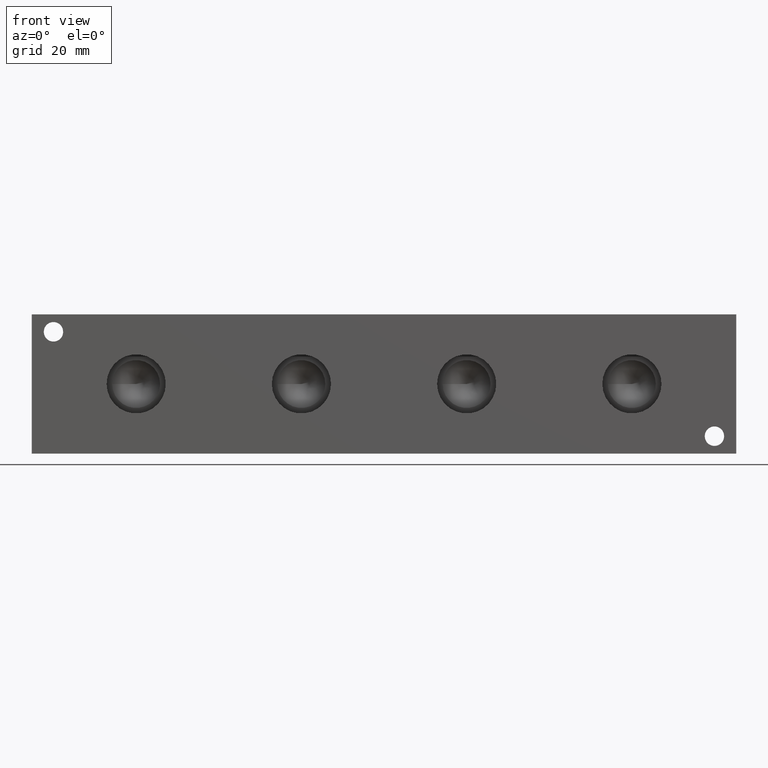
[diagram: clean part render]
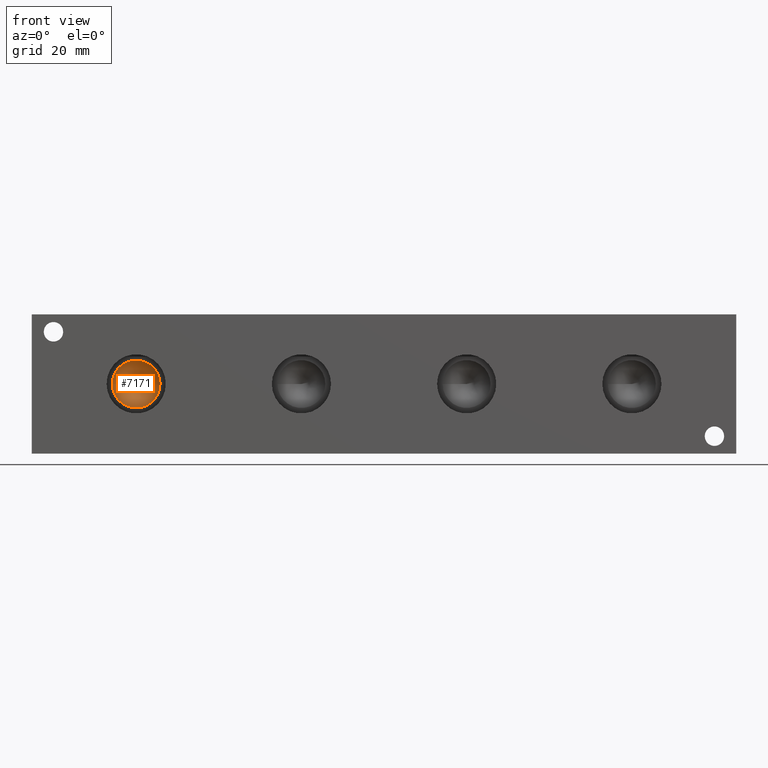
[diagram: same view with one face highlighted and labeled with its STEP entity id]
A machine part, front view. The second image highlights one B-rep face of the part: STEP entity #7171.
In plain terms, the highlighted conical surface has half-angle 60 deg.
Its self-contained STEP definition (entity closure, byte-faithful):
#15=CONICAL_SURFACE('',#7474,4.3688,1.0471975511966);
#87=CIRCLE('',#7475,8.7376);
#88=CIRCLE('',#7476,8.7376);
#748=FACE_OUTER_BOUND('',#1152,.T.);
#1152=EDGE_LOOP('',(#6195,#6196,#6197,#6198));
#1870=LINE('',#12121,#2563);
#2563=VECTOR('',#8726,4.3688);
#3404=VERTEX_POINT('',#12117);
#3405=VERTEX_POINT('',#12118);
#3406=VERTEX_POINT('',#12120);
#4355=EDGE_CURVE('',#3404,#3405,#87,.T.);
#4356=EDGE_CURVE('',#3405,#3406,#1870,.T.);
#4357=EDGE_CURVE('',#3405,#3404,#88,.T.);
#6195=ORIENTED_EDGE('',*,*,#4355,.T.);
#6196=ORIENTED_EDGE('',*,*,#4356,.T.);
#6197=ORIENTED_EDGE('',*,*,#4356,.F.);
#6198=ORIENTED_EDGE('',*,*,#4357,.T.);
#7171=ADVANCED_FACE('',(#748),#15,.F.);
#7474=AXIS2_PLACEMENT_3D('',#12116,#8722,#8723);
#7475=AXIS2_PLACEMENT_3D('',#12119,#8724,#8725);
#7476=AXIS2_PLACEMENT_3D('',#12122,#8727,#8728);
#8722=DIRECTION('center_axis',(0.,-1.,0.));
#8723=DIRECTION('ref_axis',(1.,0.,0.));
#8724=DIRECTION('center_axis',(0.,-1.,0.));
#8725=DIRECTION('ref_axis',(1.,0.,0.));
#8726=DIRECTION('',(0.866025403784439,0.5,1.06057523872491E-16));
#8727=DIRECTION('center_axis',(0.,-1.,0.));
#8728=DIRECTION('ref_axis',(1.,0.,0.));
#12116=CARTESIAN_POINT('Origin',(38.1,18.3937978560356,25.4));
#12117=CARTESIAN_POINT('',(46.8376,15.87147,25.4));
#12118=CARTESIAN_POINT('',(29.3624,15.87147,25.4));
#12119=CARTESIAN_POINT('Origin',(38.1,15.87147,25.4));
#12120=CARTESIAN_POINT('',(38.1,20.9161257120713,25.4));
#12121=CARTESIAN_POINT('',(33.7312,18.3937978560356,25.4));
#12122=CARTESIAN_POINT('Origin',(38.1,15.87147,25.4));